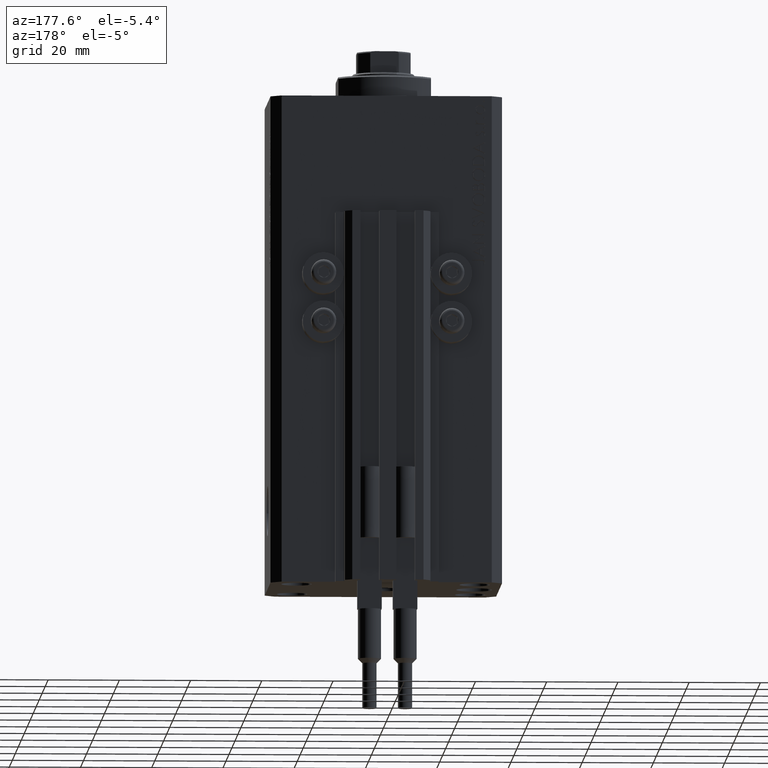
[diagram: clean part render]
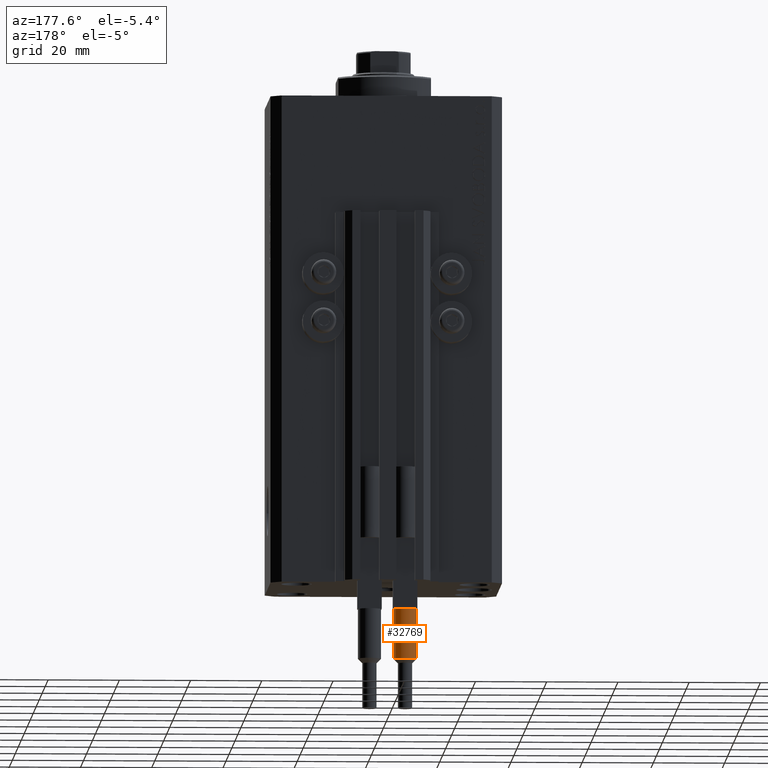
[diagram: same view with one face highlighted and labeled with its STEP entity id]
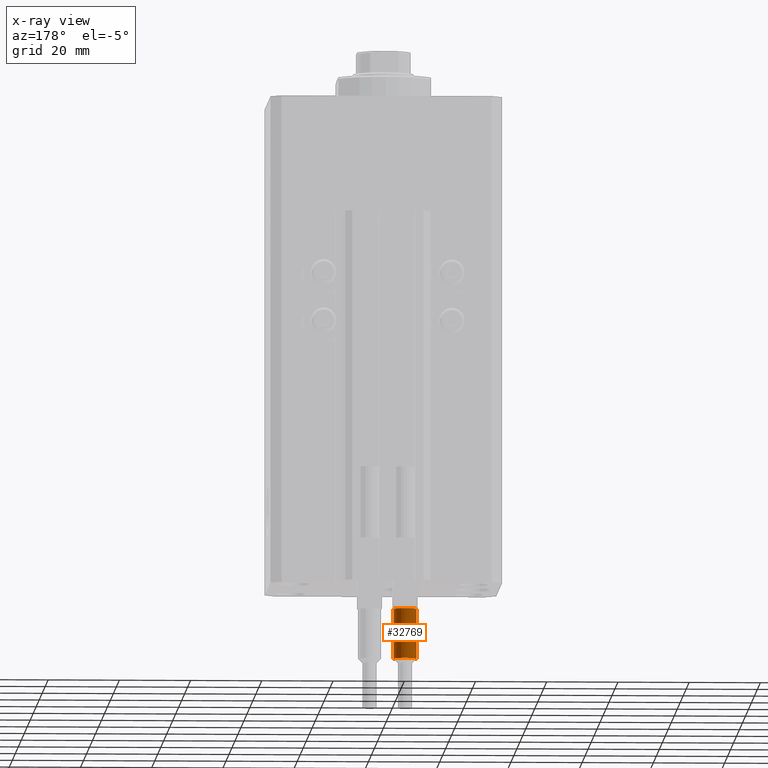
[diagram: x-ray of the same camera — body ghosted, the highlighted face saturated]
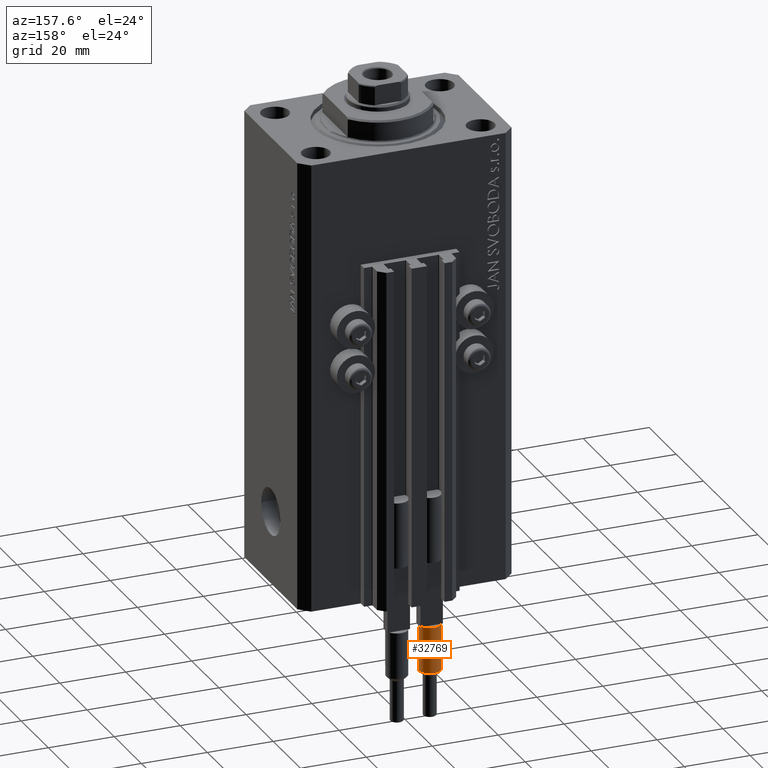
[diagram: same view with one face highlighted and labeled with its STEP entity id]
A machine part, auxiliary view. The second image highlights one B-rep face of the part: STEP entity #32769.
The next image is the same camera in x-ray: the body ghosted, the highlighted face saturated — about 0% of this face is hidden behind the body in this view.
A second angle (auxiliary view) of the same face is appended — the face is thin or edge-on in the first view.
In plain terms, the highlighted cylindrical surface (edge-blend (fillet) strip) has radius 3.25 mm, axis along (-0, -0, 1).
Its self-contained STEP definition (entity closure, byte-faithful):
#397 = DIRECTION ( 'NONE',  ( 1.000000000000000000, 0.000000000000000000, 0.000000000000000000 ) ) ;
#1098 = ORIENTED_EDGE ( 'NONE', *, *, #44791, .T. ) ;
#1250 = CARTESIAN_POINT ( 'NONE',  ( 3.250000000000000444, 3.980102097228898231E-16, 56.00000000000000000 ) ) ;
#1542 = CARTESIAN_POINT ( 'NONE',  ( -3.250000000000000444, 0.000000000000000000, 53.99999999999998579 ) ) ;
#2009 = EDGE_CURVE ( 'NONE', #41294, #43397, #6132, .T. ) ;
#3126 = CIRCLE ( 'NONE', #26389, 3.250000000000000444 ) ;
#4043 = CARTESIAN_POINT ( 'NONE',  ( 0.000000000000000000, 0.000000000000000000, 40.00000000000000000 ) ) ;
#4281 = DIRECTION ( 'NONE',  ( 0.000000000000000000, 0.000000000000000000, 1.000000000000000000 ) ) ;
#5525 = CARTESIAN_POINT ( 'NONE',  ( 3.250000000000000444, 3.980102097228898231E-16, 53.99999999999998579 ) ) ;
#5634 = VERTEX_POINT ( 'NONE', #1542 ) ;
#6132 = CIRCLE ( 'NONE', #11522, 3.250000000000000444 ) ;
#7569 = LINE ( 'NONE', #1250, #40067 ) ;
#7871 = AXIS2_PLACEMENT_3D ( 'NONE', #42941, #9587, #24418 ) ;
#7943 = ORIENTED_EDGE ( 'NONE', *, *, #47899, .T. ) ;
#8160 = DIRECTION ( 'NONE',  ( 1.000000000000000000, 0.000000000000000000, 0.000000000000000000 ) ) ;
#8408 = DIRECTION ( 'NONE',  ( 0.000000000000000000, 0.000000000000000000, 1.000000000000000000 ) ) ;
#9587 = DIRECTION ( 'NONE',  ( 0.000000000000000000, 0.000000000000000000, -1.000000000000000000 ) ) ;
#10081 = CARTESIAN_POINT ( 'NONE',  ( 0.000000000000000000, 0.000000000000000000, 56.00000000000000000 ) ) ;
#10963 = CIRCLE ( 'NONE', #22608, 3.250000000000000444 ) ;
#11522 = AXIS2_PLACEMENT_3D ( 'NONE', #4043, #8408, #8160 ) ;
#11541 = DIRECTION ( 'NONE',  ( 1.000000000000000000, 0.000000000000000000, 0.000000000000000000 ) ) ;
#11718 = VERTEX_POINT ( 'NONE', #43816 ) ;
#12455 = CARTESIAN_POINT ( 'NONE',  ( 2.883140648667699146, -1.500000000000000000, 40.00000000000000000 ) ) ;
#13251 = EDGE_CURVE ( 'NONE', #47717, #5634, #38998, .T. ) ;
#13734 = CYLINDRICAL_SURFACE ( 'NONE', #47160, 3.250000000000000444 ) ;
#14764 = CARTESIAN_POINT ( 'NONE',  ( 0.000000000000000000, 0.000000000000000000, 40.00000000000000000 ) ) ;
#18358 = VERTEX_POINT ( 'NONE', #30609 ) ;
#18774 = DIRECTION ( 'NONE',  ( -0.000000000000000000, -0.000000000000000000, -1.000000000000000000 ) ) ;
#19229 = CARTESIAN_POINT ( 'NONE',  ( 3.250000000000000444, 3.980102097228898231E-16, 40.00000000000000000 ) ) ;
#21259 = EDGE_CURVE ( 'NONE', #5634, #18358, #38200, .T. ) ;
#22608 = AXIS2_PLACEMENT_3D ( 'NONE', #33221, #29566, #11541 ) ;
#24418 = DIRECTION ( 'NONE',  ( 1.000000000000000000, 0.000000000000000000, 0.000000000000000000 ) ) ;
#24917 = FACE_OUTER_BOUND ( 'NONE', #25474, .T. ) ;
#25474 = EDGE_LOOP ( 'NONE', ( #42569, #42148, #27756, #7943, #1098, #38966 ) ) ;
#25750 = EDGE_CURVE ( 'NONE', #47717, #43397, #7569, .T. ) ;
#26389 = AXIS2_PLACEMENT_3D ( 'NONE', #14764, #4281, #397 ) ;
#27756 = ORIENTED_EDGE ( 'NONE', *, *, #21259, .T. ) ;
#29566 = DIRECTION ( 'NONE',  ( 0.000000000000000000, 0.000000000000000000, 1.000000000000000000 ) ) ;
#30609 = CARTESIAN_POINT ( 'NONE',  ( -3.250000000000000444, 0.000000000000000000, 40.00000000000000000 ) ) ;
#32769 = ADVANCED_FACE ( 'NONE', ( #24917 ), #13734, .T. ) ;
#33221 = CARTESIAN_POINT ( 'NONE',  ( 0.000000000000000000, 0.000000000000000000, 40.00000000000000000 ) ) ;
#37229 = CARTESIAN_POINT ( 'NONE',  ( -3.250000000000000444, 0.000000000000000000, 56.00000000000000000 ) ) ;
#38200 = LINE ( 'NONE', #37229, #46155 ) ;
#38966 = ORIENTED_EDGE ( 'NONE', *, *, #2009, .T. ) ;
#38998 = CIRCLE ( 'NONE', #7871, 3.250000000000000444 ) ;
#39786 = DIRECTION ( 'NONE',  ( -0.000000000000000000, -0.000000000000000000, -1.000000000000000000 ) ) ;
#40067 = VECTOR ( 'NONE', #18774, 1000.000000000000000 ) ;
#41294 = VERTEX_POINT ( 'NONE', #12455 ) ;
#41856 = DIRECTION ( 'NONE',  ( -0.000000000000000000, -0.000000000000000000, -1.000000000000000000 ) ) ;
#42148 = ORIENTED_EDGE ( 'NONE', *, *, #13251, .T. ) ;
#42569 = ORIENTED_EDGE ( 'NONE', *, *, #25750, .F. ) ;
#42941 = CARTESIAN_POINT ( 'NONE',  ( 0.000000000000000000, 0.000000000000000000, 53.99999999999998579 ) ) ;
#43397 = VERTEX_POINT ( 'NONE', #19229 ) ;
#43816 = CARTESIAN_POINT ( 'NONE',  ( -2.883140648667699146, -1.500000000000000000, 40.00000000000000000 ) ) ;
#44152 = DIRECTION ( 'NONE',  ( -1.000000000000000000, 0.000000000000000000, 0.000000000000000000 ) ) ;
#44791 = EDGE_CURVE ( 'NONE', #11718, #41294, #3126, .T. ) ;
#46155 = VECTOR ( 'NONE', #41856, 1000.000000000000000 ) ;
#47160 = AXIS2_PLACEMENT_3D ( 'NONE', #10081, #39786, #44152 ) ;
#47717 = VERTEX_POINT ( 'NONE', #5525 ) ;
#47899 = EDGE_CURVE ( 'NONE', #18358, #11718, #10963, .T. ) ;